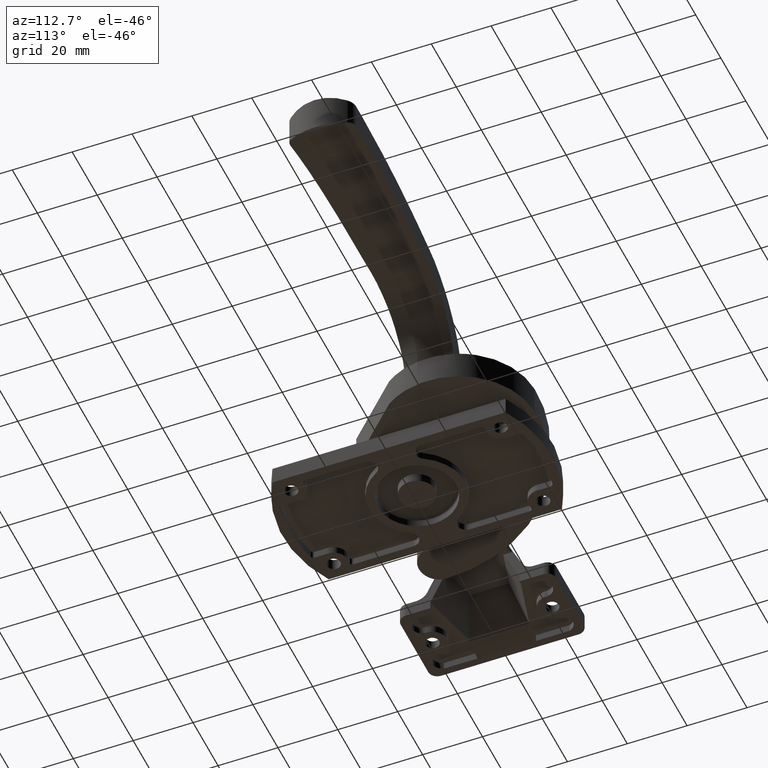
[diagram: clean part render]
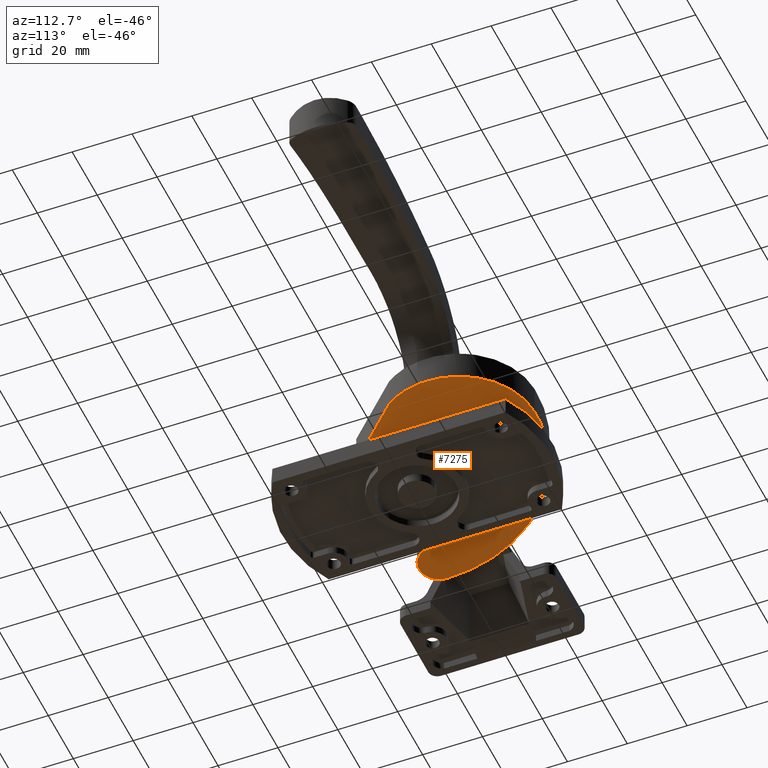
[diagram: same view with one face highlighted and labeled with its STEP entity id]
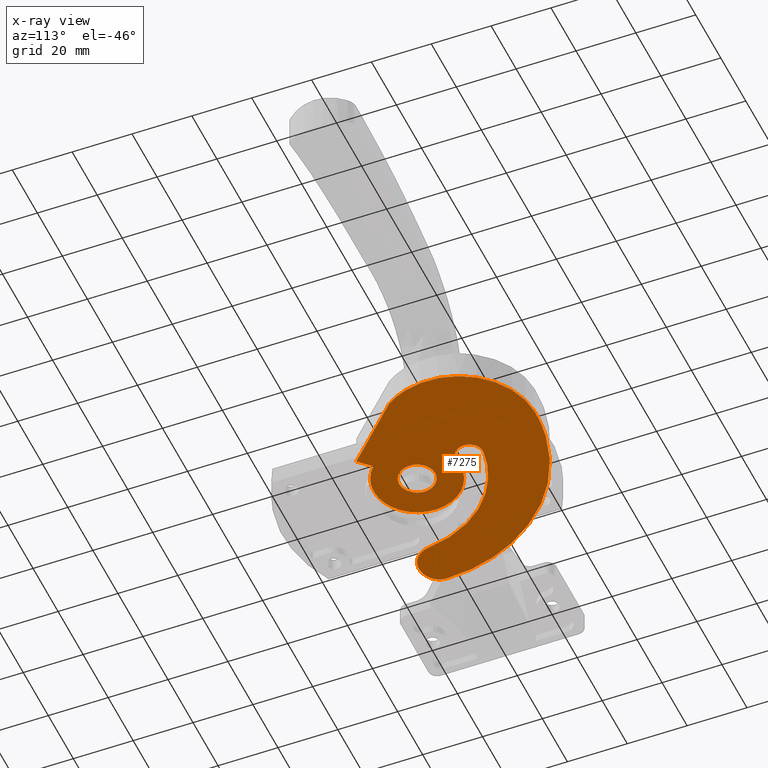
[diagram: x-ray of the same camera — body ghosted, the highlighted face saturated]
A machine part, auxiliary view. The second image highlights one B-rep face of the part: STEP entity #7275.
The next image is the same camera in x-ray: the body ghosted, the highlighted face saturated — about 0% of this face is hidden behind the body in this view.
In plain terms, the highlighted face is a freeform B-spline surface patch.
Its self-contained STEP definition (entity closure, byte-faithful):
#5523=CARTESIAN_POINT('',(-0.744768012661122,-5.953597282930446,7.599999999999998));
#5524=VERTEX_POINT('',#5523);
#5525=CARTESIAN_POINT('',(-6.0,0.0,7.600000000000000));
#5526=VERTEX_POINT('',#5525);
#5527=CARTESIAN_POINT('',(-0.744768012661122,-5.953597282930446,7.599999999999998));
#5528=CARTESIAN_POINT('',(-6.000000000000001,-5.296191600574781,7.600000000000001));
#5529=CARTESIAN_POINT('',(-6.0,0.0,7.600000000000000));
#5537=(BOUNDED_CURVE()B_SPLINE_CURVE(2,(#5527,#5528,#5529),.UNSPECIFIED.,.F.,.U.)B_SPLINE_CURVE_WITH_KNOTS((3,3),(0.271473928981020,0.500000000000000),.UNSPECIFIED.)CURVE()GEOMETRIC_REPRESENTATION_ITEM()RATIONAL_B_SPLINE_CURVE((0.954005430254693,0.732265053905838,1.0))REPRESENTATION_ITEM(''));
#5538=EDGE_CURVE('',#5524,#5526,#5537,.T.);
#5540=CARTESIAN_POINT('',(0.052359213856481,5.999771538377468,7.600000000000000));
#5541=VERTEX_POINT('',#5540);
#5542=CARTESIAN_POINT('',(-6.0,0.0,7.600000000000000));
#5543=CARTESIAN_POINT('',(-6.0,6.0,7.600000000000000));
#5544=CARTESIAN_POINT('',(0.0,6.0,7.600000000000000));
#5545=CARTESIAN_POINT('',(0.026180105790512,6.000000000000001,7.600000000000000));
#5546=CARTESIAN_POINT('',(0.052359213856481,5.999771538377469,7.600000000000000));
#5554=(BOUNDED_CURVE()B_SPLINE_CURVE(2,(#5542,#5543,#5544,#5545,#5546),.UNSPECIFIED.,.F.,.U.)B_SPLINE_CURVE_WITH_KNOTS((3,2,3),(0.500000000000000,0.750000000000000,0.751539894385850),.UNSPECIFIED.)CURVE()GEOMETRIC_REPRESENTATION_ITEM()RATIONAL_B_SPLINE_CURVE((1.0,0.707106781186548,1.0,0.998195901506782,0.996414027982694))REPRESENTATION_ITEM(''));
#5555=EDGE_CURVE('',#5526,#5541,#5554,.T.);
#5626=CARTESIAN_POINT('',(6.0,0.0,7.600000000000000));
#5627=VERTEX_POINT('',#5626);
#5628=CARTESIAN_POINT('',(6.0,0.0,7.600000000000000));
#5629=CARTESIAN_POINT('',(6.0,-6.0,7.600000000000000));
#5630=CARTESIAN_POINT('',(0.0,-6.0,7.600000000000000));
#5631=CARTESIAN_POINT('',(-0.373829565385243,-6.000000000000001,7.600000000000001));
#5632=CARTESIAN_POINT('',(-0.744768012661122,-5.953597282930446,7.599999999999998));
#5640=(BOUNDED_CURVE()B_SPLINE_CURVE(2,(#5628,#5629,#5630,#5631,#5632),.UNSPECIFIED.,.F.,.U.)B_SPLINE_CURVE_WITH_KNOTS((3,2,3),(0.0,0.250000000000000,0.271473928981020),.UNSPECIFIED.)CURVE()GEOMETRIC_REPRESENTATION_ITEM()RATIONAL_B_SPLINE_CURVE((1.0,0.707106781186548,1.0,0.974841727280710,0.954005430254693))REPRESENTATION_ITEM(''));
#5641=EDGE_CURVE('',#5627,#5524,#5640,.T.);
#5675=CARTESIAN_POINT('',(0.052359213856481,5.999771538377468,7.600000000000000));
#5676=CARTESIAN_POINT('',(6.0,5.947867261852316,7.600000000000000));
#5677=CARTESIAN_POINT('',(6.0,0.0,7.600000000000000));
#5685=(BOUNDED_CURVE()B_SPLINE_CURVE(2,(#5675,#5676,#5677),.UNSPECIFIED.,.F.,.U.)B_SPLINE_CURVE_WITH_KNOTS((3,3),(0.751539894385850,1.0),.UNSPECIFIED.)CURVE()GEOMETRIC_REPRESENTATION_ITEM()RATIONAL_B_SPLINE_CURVE((0.996414027982696,0.708910879679765,1.0))REPRESENTATION_ITEM(''));
#5686=EDGE_CURVE('',#5541,#5627,#5685,.T.);
#6436=CARTESIAN_POINT('',(-43.000019177696707,-8.066175298361559,7.600000000000000));
#6437=VERTEX_POINT('',#6436);
#6445=CARTESIAN_POINT('',(-40.795966174602647,-12.766169304838840,7.600000000000000));
#6446=VERTEX_POINT('',#6445);
#6447=CARTESIAN_POINT('',(-43.000019177696700,-8.066175298361541,7.600000000000000));
#6448=CARTESIAN_POINT('',(-43.000019177696707,-10.932965475565203,7.600000000000001));
#6449=CARTESIAN_POINT('',(-40.795966174602640,-12.766169304838829,7.600000000000000));
#6457=(BOUNDED_CURVE()B_SPLINE_CURVE(2,(#6447,#6448,#6449),.UNSPECIFIED.,.F.,.U.)CURVE()GEOMETRIC_REPRESENTATION_ITEM()QUASI_UNIFORM_CURVE()RATIONAL_B_SPLINE_CURVE((1.0,0.905390014472686,1.0))REPRESENTATION_ITEM(''));
#6458=EDGE_CURVE('',#6437,#6446,#6457,.T.);
#6497=CARTESIAN_POINT('',(-36.713930954665287,16.205081718023202,7.600000000000000));
#6498=VERTEX_POINT('',#6497);
#6499=CARTESIAN_POINT('',(-36.713930954665280,16.205081718023202,7.600000000000000));
#6500=CARTESIAN_POINT('',(-43.000019177696686,4.883479964214795,7.600000000000000));
#6501=CARTESIAN_POINT('',(-43.000019177696693,-8.066175298361559,7.600000000000000));
#6509=(BOUNDED_CURVE()B_SPLINE_CURVE(2,(#6499,#6500,#6501),.UNSPECIFIED.,.F.,.U.)CURVE()GEOMETRIC_REPRESENTATION_ITEM()QUASI_UNIFORM_CURVE()RATIONAL_B_SPLINE_CURVE((1.0,0.968059459831722,1.0))REPRESENTATION_ITEM(''));
#6510=EDGE_CURVE('',#6498,#6437,#6509,.T.);
#6681=CARTESIAN_POINT('',(2.600958504953725,23.225718293213500,7.600000026829570));
#6682=VERTEX_POINT('',#6681);
#6694=CARTESIAN_POINT('',(-2.672849321449770,22.259623935265552,7.600000000000000));
#6695=VERTEX_POINT('',#6694);
#6709=CARTESIAN_POINT('',(-2.672849321449766,22.259623935265559,7.600000000000000));
#6710=CARTESIAN_POINT('',(-0.073052849360860,22.945236745379653,7.600000000000001));
#6711=CARTESIAN_POINT('',(2.600958504953725,23.225718293213500,7.600000026829570));
#6719=(BOUNDED_CURVE()B_SPLINE_CURVE(2,(#6709,#6710,#6711),.UNSPECIFIED.,.F.,.U.)CURVE()GEOMETRIC_REPRESENTATION_ITEM()QUASI_UNIFORM_CURVE()RATIONAL_B_SPLINE_CURVE((1.0,0.997062380354006,1.0))REPRESENTATION_ITEM(''));
#6720=EDGE_CURVE('',#6695,#6682,#6719,.T.);
#6850=CARTESIAN_POINT('',(2.343196953892615,14.309417381946799,7.600000000000000));
#6851=VERTEX_POINT('',#6850);
#6852=CARTESIAN_POINT('',(2.600958504953725,23.225718293213500,7.600000026829570));
#6853=CARTESIAN_POINT('',(5.457401684357417,23.525335610765449,7.600000000000001));
#6854=CARTESIAN_POINT('',(6.932008684041991,21.060670852503151,7.600000000000000));
#6855=CARTESIAN_POINT('',(8.406615683726564,18.596006094240849,7.600000000000001));
#6856=CARTESIAN_POINT('',(6.792088263668125,16.220645198709740,7.600000000000000));
#6857=CARTESIAN_POINT('',(5.177560843609687,13.845284303178628,7.600000000000001));
#6858=CARTESIAN_POINT('',(2.343196953892615,14.309417381946799,7.600000000000000));
#6866=(BOUNDED_CURVE()B_SPLINE_CURVE(2,(#6852,#6853,#6854,#6855,#6856,#6857,#6858),.UNSPECIFIED.,.F.,.U.)B_SPLINE_CURVE_WITH_KNOTS((3,2,2,3),(0.0,0.333333333333333,0.666666666666667,1.0),.UNSPECIFIED.)CURVE()GEOMETRIC_REPRESENTATION_ITEM()RATIONAL_B_SPLINE_CURVE((1.0,0.842941454453890,1.0,0.842941454453890,1.0,0.842941454453890,1.0))REPRESENTATION_ITEM(''));
#6867=EDGE_CURVE('',#6682,#6851,#6866,.T.);
#6940=CARTESIAN_POINT('',(10.071620575590179,-10.431321056383419,7.600000000000000));
#6941=VERTEX_POINT('',#6940);
#6942=CARTESIAN_POINT('',(10.071620575590190,-10.431321056383430,7.600000000000000));
#6943=CARTESIAN_POINT('',(1.659880719271367,-18.553001115455970,7.600000000000001));
#6944=CARTESIAN_POINT('',(-8.059971889294378,-12.053499622258441,7.600000000000000));
#6945=CARTESIAN_POINT('',(-17.779824497860130,-5.553998129060918,7.600000000000001));
#6946=CARTESIAN_POINT('',(-13.487817767176169,5.322477982993153,7.600000000000000));
#6947=CARTESIAN_POINT('',(-9.195811036492215,16.198954095047227,7.600000000000001));
#6948=CARTESIAN_POINT('',(2.343196953892615,14.309417381946799,7.600000000000000));
#6956=(BOUNDED_CURVE()B_SPLINE_CURVE(2,(#6942,#6943,#6944,#6945,#6946,#6947,#6948),.UNSPECIFIED.,.F.,.U.)B_SPLINE_CURVE_WITH_KNOTS((3,2,2,3),(0.0,0.333333333333333,0.666666666666667,1.0),.UNSPECIFIED.)CURVE()GEOMETRIC_REPRESENTATION_ITEM()RATIONAL_B_SPLINE_CURVE((1.0,0.778435495666089,1.0,0.778435495666089,1.0,0.778435495666089,1.0))REPRESENTATION_ITEM(''));
#6957=EDGE_CURVE('',#6941,#6851,#6956,.T.);
#6980=CARTESIAN_POINT('',(14.0,-14.500000000000000,7.600000000000000));
#6981=VERTEX_POINT('',#6980);
#6982=CARTESIAN_POINT('',(14.0,-14.500000000000000,7.600000000000000));
#6983=CARTESIAN_POINT('',(10.071620575590179,-10.431321056383419,7.600000000000000));
#6984=QUASI_UNIFORM_CURVE('',1,(#6982,#6983),.UNSPECIFIED.,.F.,.U.);
#6985=EDGE_CURVE('',#6981,#6941,#6984,.T.);
#7008=CARTESIAN_POINT('',(32.922144000000003,4.422145000000055,7.600000000000000));
#7009=VERTEX_POINT('',#7008);
#7010=CARTESIAN_POINT('',(32.922144000000003,4.422145000000055,7.600000000000000));
#7011=CARTESIAN_POINT('',(14.0,-14.500000000000000,7.600000000000000));
#7012=QUASI_UNIFORM_CURVE('',1,(#7010,#7011),.UNSPECIFIED.,.F.,.U.);
#7013=EDGE_CURVE('',#7009,#6981,#7012,.T.);
#7091=CARTESIAN_POINT('',(12.543390818056860,44.494210053784897,7.600000000000000));
#7092=VERTEX_POINT('',#7091);
#7093=CARTESIAN_POINT('',(12.543390818056860,44.494210053784897,7.600000000000000));
#7094=CARTESIAN_POINT('',(27.808382119541243,44.168847313881571,7.600000000000000));
#7095=CARTESIAN_POINT('',(34.729604072968819,30.559199742459889,7.600000000000000));
#7096=CARTESIAN_POINT('',(41.650826026396381,16.949552171038192,7.600000000000000));
#7097=CARTESIAN_POINT('',(32.922144000000003,4.422145000000055,7.600000000000000));
#7105=(BOUNDED_CURVE()B_SPLINE_CURVE(2,(#7093,#7094,#7095,#7096,#7097),.UNSPECIFIED.,.F.,.U.)B_SPLINE_CURVE_WITH_KNOTS((3,2,3),(0.0,0.500000000000000,1.0),.UNSPECIFIED.)CURVE()GEOMETRIC_REPRESENTATION_ITEM()RATIONAL_B_SPLINE_CURVE((1.0,0.857960762693510,1.0,0.857960762693510,1.0))REPRESENTATION_ITEM(''));
#7106=EDGE_CURVE('',#7092,#7009,#7105,.T.);
#7146=CARTESIAN_POINT('',(-36.713930954665287,16.205081718023180,7.600000000000000));
#7147=CARTESIAN_POINT('',(-20.614568290816674,45.200947843861314,7.599999999999999));
#7148=CARTESIAN_POINT('',(12.543390818056860,44.494210053784911,7.600000000000000));
#7156=(BOUNDED_CURVE()B_SPLINE_CURVE(2,(#7146,#7147,#7148),.UNSPECIFIED.,.F.,.U.)CURVE()GEOMETRIC_REPRESENTATION_ITEM()QUASI_UNIFORM_CURVE()RATIONAL_B_SPLINE_CURVE((1.0,0.856354056585161,1.0))REPRESENTATION_ITEM(''));
#7157=EDGE_CURVE('',#6498,#7092,#7156,.T.);
#7178=CARTESIAN_POINT('',(-28.543739845921252,-7.808820624460110,7.600000000000000));
#7179=VERTEX_POINT('',#7178);
#7180=CARTESIAN_POINT('',(-28.543739845921252,-7.808820624460110,7.600000000000000));
#7181=CARTESIAN_POINT('',(-29.027621284914602,-12.269565862435917,7.599999999999999));
#7182=CARTESIAN_POINT('',(-33.186973683602972,-13.952473153005180,7.600000000000000));
#7183=CARTESIAN_POINT('',(-37.346326082291348,-15.635380443574441,7.599999999999999));
#7184=CARTESIAN_POINT('',(-40.795966174602718,-12.766169304838920,7.600000000000000));
#7192=(BOUNDED_CURVE()B_SPLINE_CURVE(2,(#7180,#7181,#7182,#7183,#7184),.UNSPECIFIED.,.F.,.U.)B_SPLINE_CURVE_WITH_KNOTS((3,2,3),(0.0,0.500000000000000,1.0),.UNSPECIFIED.)CURVE()GEOMETRIC_REPRESENTATION_ITEM()RATIONAL_B_SPLINE_CURVE((1.0,0.858152839149907,1.0,0.858152839149907,1.0))REPRESENTATION_ITEM(''));
#7193=EDGE_CURVE('',#7179,#6446,#7192,.T.);
#7220=CARTESIAN_POINT('',(-28.543739845921241,-7.808820624460120,7.600000000000000));
#7221=CARTESIAN_POINT('',(-25.947880882148002,16.121581990388727,7.600000000000000));
#7222=CARTESIAN_POINT('',(-2.672849321449766,22.259623935265559,7.600000000000000));
#7230=(BOUNDED_CURVE()B_SPLINE_CURVE(2,(#7220,#7221,#7222),.UNSPECIFIED.,.F.,.U.)CURVE()GEOMETRIC_REPRESENTATION_ITEM()QUASI_UNIFORM_CURVE()RATIONAL_B_SPLINE_CURVE((1.0,0.823950868511169,1.0))REPRESENTATION_ITEM(''));
#7231=EDGE_CURVE('',#7179,#6695,#7230,.T.);
#7251=CARTESIAN_POINT('',(41.506332747097382,-17.447081046353919,7.600000000000000));
#7252=CARTESIAN_POINT('',(-47.020300514087701,-17.447081046353919,7.600000000000000));
#7253=CARTESIAN_POINT('',(41.506332747097382,47.447706466462570,7.600000000000000));
#7254=CARTESIAN_POINT('',(-47.020300514087701,47.447706466462570,7.600000000000000));
#7255=B_SPLINE_SURFACE_WITH_KNOTS('',1,1,((#7251,#7253),(#7252,#7254)),.UNSPECIFIED.,.F.,.F.,.U.,(2,2),(2,2),(0.0,88.526633261185083),(0.0,64.894787512816492),.UNSPECIFIED.);
#7256=ORIENTED_EDGE('',*,*,#6510,.F.);
#7257=ORIENTED_EDGE('',*,*,#7157,.T.);
#7258=ORIENTED_EDGE('',*,*,#7106,.T.);
#7259=ORIENTED_EDGE('',*,*,#7013,.T.);
#7260=ORIENTED_EDGE('',*,*,#6985,.T.);
#7261=ORIENTED_EDGE('',*,*,#6957,.T.);
#7262=ORIENTED_EDGE('',*,*,#6867,.F.);
#7263=ORIENTED_EDGE('',*,*,#6720,.F.);
#7264=ORIENTED_EDGE('',*,*,#7231,.F.);
#7265=ORIENTED_EDGE('',*,*,#7193,.T.);
#7266=ORIENTED_EDGE('',*,*,#6458,.F.);
#7267=EDGE_LOOP('',(#7256,#7257,#7258,#7259,#7260,#7261,#7262,#7263,#7264,#7265,#7266));
#7268=FACE_OUTER_BOUND('',#7267,.T.);
#7269=ORIENTED_EDGE('',*,*,#5555,.F.);
#7270=ORIENTED_EDGE('',*,*,#5538,.F.);
#7271=ORIENTED_EDGE('',*,*,#5641,.F.);
#7272=ORIENTED_EDGE('',*,*,#5686,.F.);
#7273=EDGE_LOOP('',(#7269,#7270,#7271,#7272));
#7274=FACE_BOUND('',#7273,.T.);
#7275=ADVANCED_FACE('',(#7268,#7274),#7255,.T.);